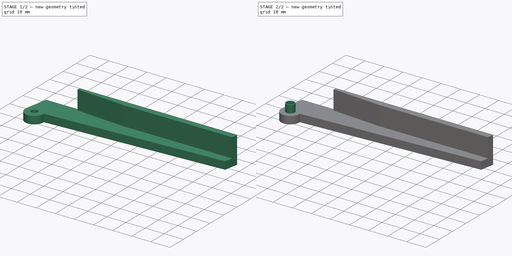
[diagram: build sequence overview — one tinted view per stage of 2, left to right]
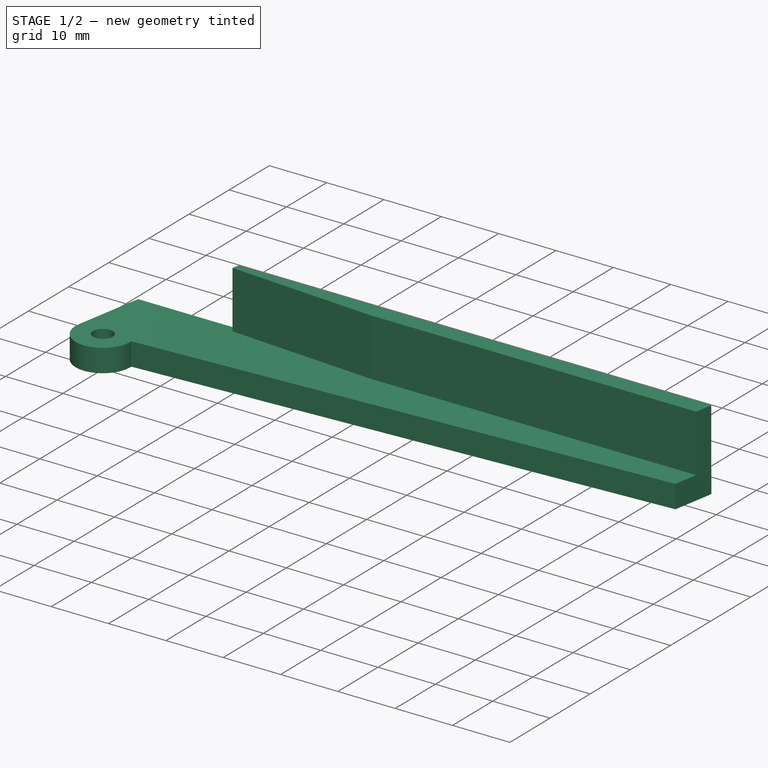
[diagram: stage 1 of 2 — iso view after this stage's code; geometry added in this stage tinted green]
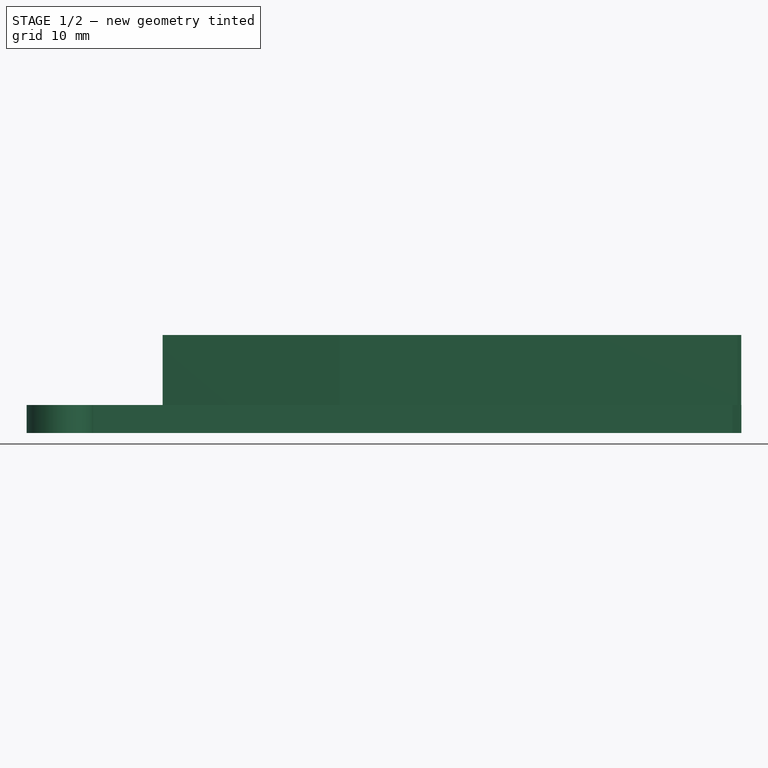
[diagram: stage 1 of 2 — front view after this stage's code; geometry added in this stage tinted green]
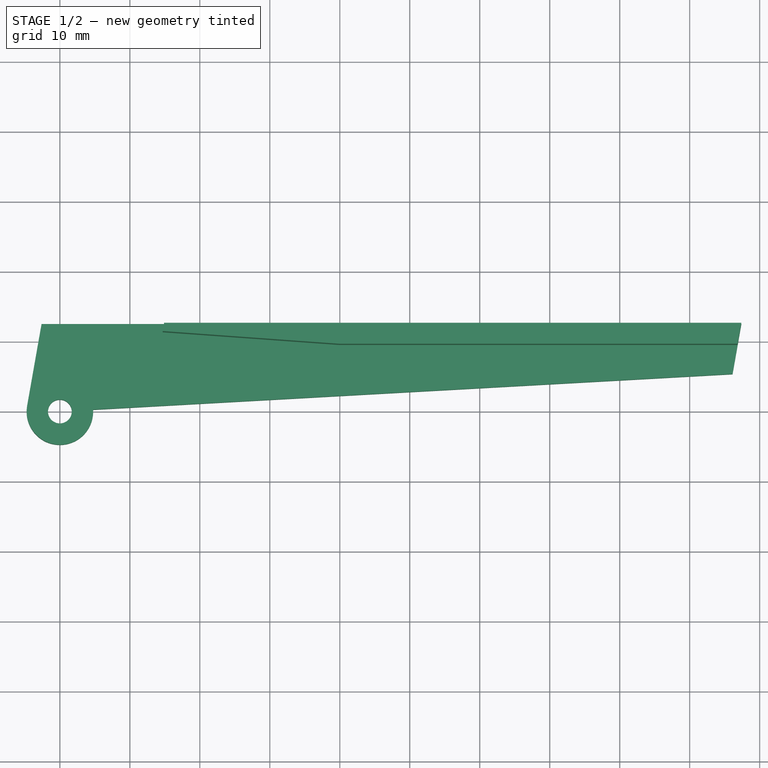
[diagram: stage 1 of 2 — top view after this stage's code; geometry added in this stage tinted green]
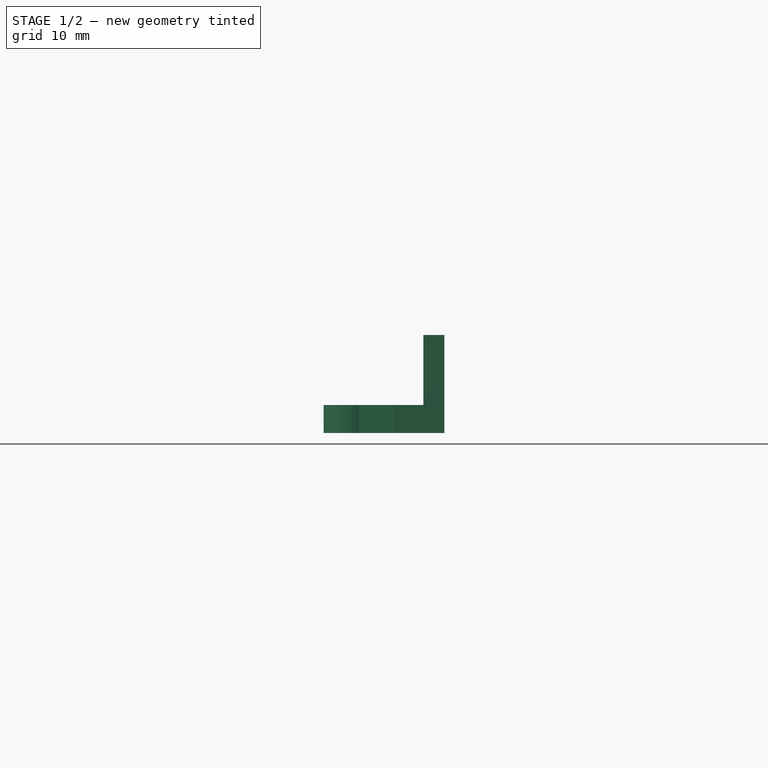
[diagram: stage 1 of 2 — right view after this stage's code; geometry added in this stage tinted green]
FCSTD DOCUMENT  (FreeCAD 0.21R33668 +7 (Git))
Label: leg1
License: All rights reserved
LicenseURL: http://en.wikipedia.org/wiki/All_rights_reserved
objects: Sketcher::SketchObject×5, PartDesign::Pad×3, PartDesign::CoordinateSystem×1, PartDesign::Body×1, App::Part×1
note: 13 computed .brp shape members not serialized (recipe doc carries the construction recipe); baked Part::Feature solids carry a one-line shape summary decoded from their .brp

FEATURE [Sketcher::SketchObject] Sketch
  FullyConstrained = true
  MapMode = 5
  Support = -> [XY_Plane]
  sketch-geometry (2):
    g0: Circle CenterX=0 CenterY=0 CenterZ=0 NormalX=0 NormalY=0 NormalZ=1 AngleXU=0 Radius=2.25
    g1: Circle CenterX=0 CenterY=0 CenterZ=0 NormalX=0 NormalY=0 NormalZ=1 AngleXU=0 Radius=1.7
  constraints (4):
    c: Coincident(g0,g-1)
    c: Diameter(g0) = 4.5
    c: Coincident(g1,g0)
    c: Diameter(g1) = 3.4
FEATURE [Sketcher::SketchObject] Sketch001
  FullyConstrained = false
  MapMode = 5
  Support = -> [XY_Plane]
  sketch-geometry (6):
    g0: ArcOfCircle CenterX=0 CenterY=0 CenterZ=0 NormalX=0 NormalY=0 NormalZ=1 AngleXU=0 Radius=4.75 StartAngle=2.96706 EndAngle=6.33885
    g1: LineSegment StartX=97.3808 StartY=12.5 StartZ=0 EndX=96.1212 EndY=5.35648 EndZ=0
    g2: LineSegment StartX=96.1212 StartY=5.35648 StartZ=0 EndX=4.74264 EndY=0.26429 EndZ=0
    g3: LineSegment StartX=-4.67784 StartY=0.824829 StartZ=0 EndX=-2.61919 EndY=12.5 EndZ=0
    g4: LineSegment StartX=-2.61919 StartY=12.5 StartZ=0 EndX=97.3808 EndY=12.5 EndZ=0
    g5: Circle CenterX=0 CenterY=0 CenterZ=0 NormalX=0 NormalY=0 NormalZ=1 AngleXU=0 Radius=1.7
  constraints (15):
    c: Coincident(g0,g-1)
    c: Coincident(g1,g2)
    c: Coincident(g0,g2)
    c: Diameter(g0) = 9.5
    c: Coincident(g4,g3)
    c: Coincident(g1,g4)
    c: DistanceY(g3) = 12.5
    c: Tangent(g3,g0) = 1.5708
    c: Angle(g3,g4) = 1.74533
    c: Distance(g4) = 100
    c: Horizontal(g4)
    c: PointOnObject(g0,g2)
    c: Angle(g4,g1) = 1.39626
    c: Coincident(g5,g0)
    c: Diameter(g5) = 3.4
FEATURE [PartDesign::Pad] Pad001
  Direction = (0,0,1)
  Length = 4
  Length2 = 10
  Profile = -> Sketch001
  ReferenceAxis = -> Sketch001 [N_Axis]
  Reversed = true
  Type = 0
FEATURE [PartDesign::CoordinateSystem] LCS_0
  AttacherType = Attacher::AttachEngine3D
  MapMode = 2
  Support = -> [X_Axis001]
FEATURE [Sketcher::SketchObject] Sketch002
  FullyConstrained = true
  MapMode = 5
  Support = -> [XY_Plane]
  sketch-geometry (8):
    g0: ArcOfCircle CenterX=0 CenterY=0 CenterZ=0 NormalX=0 NormalY=0 NormalZ=1 AngleXU=0 Radius=4.75 StartAngle=4.71239 EndAngle=8.08017
    g1: LineSegment StartX=-29.2201 StartY=93.7308 StartZ=0 EndX=-21.5701 EndY=93.7308 EndZ=0
    g2: LineSegment StartX=-21.5701 StartY=93.7308 StartZ=0 EndX=-1.06527 EndY=4.62901 EndZ=0
    g3: LineSegment StartX=-6.5274e-12 StartY=-4.75 StartZ=0 EndX=-11.8553 EndY=-4.75 EndZ=0
    g4: LineSegment StartX=-11.8553 StartY=-4.75 StartZ=0 EndX=-29.2201 EndY=93.7308 EndZ=0
    g5: LineSegment StartX=-12.6928 StartY=0 StartZ=0 EndX=-14.8969 EndY=12.5 EndZ=0
    g6: LineSegment StartX=-14.8969 StartY=12.5 StartZ=0 EndX=-14.8969 EndY=0 EndZ=0
    g7: LineSegment StartX=-14.8969 StartY=0 StartZ=0 EndX=-12.6928 EndY=0 EndZ=0
  constraints (23):
    c: Coincident(g0,g-1)
    c: Coincident(g1,g2)
    c: Coincident(g0,g2)
    c: Diameter(g0) = 9.5
    c: Coincident(g4,g3)
    c: Coincident(g1,g4)
    c: Tangent(g3,g0) = 1.5708
    c: Angle(g3,g4) = 1.74533
    c: Angle(g4,g1) = 1.39626
    c: Distance(g4) = 100
    c: Distance(g1) = 7.65
    c: Distance(g0,g4) = 12.5
    c: Horizontal(g3)
    c: PointOnObject(g5,g4)
    c: PointOnObject(g5,g4)
    c: Coincident(g5,g6)
    c: PointOnObject(g6,g-1)
    c: Vertical(g6)
    c: Coincident(g6,g7)
    c: Coincident(g7,g5)
    c: PointOnObject(g5,g-1)
    c: DistanceY(g5) = 12.5
    c: PointOnObject(g0,g2)
FEATURE [Sketcher::SketchObject] Sketch003
  FullyConstrained = true
  MapMode = 5
  Support = -> [XY_Plane]
  sketch-geometry (1):
    g0: Circle CenterX=0 CenterY=0 CenterZ=0 NormalX=0 NormalY=0 NormalZ=1 AngleXU=0 Radius=4.75
  constraints (2):
    c: Coincident(g0,g-1)
    c: Diameter(g0) = 9.5
FEATURE [Sketcher::SketchObject] Sketch004
  FullyConstrained = false
  MapMode = 5
  Support = -> [XY_Plane]
  sketch-geometry (12):
    g0: LineSegment StartX=14.8968 StartY=12.5 StartZ=0 EndX=97.3637 EndY=12.5 EndZ=0
    g1: LineSegment StartX=96.4669 StartY=7.5 StartZ=0 EndX=14 EndY=7.5 EndZ=0
    g2: LineSegment StartX=0 StartY=0 StartZ=0 EndX=2.1706 EndY=12.3101 EndZ=0
    g3: LineSegment StartX=2.1706 StartY=12.3101 StartZ=0 EndX=14.4807 EndY=10.1395 EndZ=0
    g4: LineSegment StartX=14.4807 StartY=10.1395 StartZ=0 EndX=21.8405 EndY=51.8788 EndZ=0
    g5: LineSegment StartX=14.4807 StartY=10.1395 StartZ=0 EndX=13.1891 EndY=2.81463 EndZ=0
    g6: LineSegment StartX=14 StartY=7.5 StartZ=0 EndX=14.6849 EndY=11.3188 EndZ=0
    g7: LineSegment StartX=14.6849 StartY=11.3188 StartZ=0 EndX=14.8968 EndY=12.5 EndZ=0
    g8: LineSegment StartX=97.3637 StartY=12.5 StartZ=0 EndX=96.8256 EndY=9.5 EndZ=0
    g9: LineSegment StartX=96.8256 StartY=9.5 StartZ=0 EndX=96.4669 EndY=7.5 EndZ=0
    g10: LineSegment StartX=96.8256 StartY=9.5 StartZ=0 EndX=39.9825 EndY=9.5 EndZ=0
    g11: LineSegment StartX=14.6849 StartY=11.3188 StartZ=0 EndX=39.9825 EndY=9.5 EndZ=0
  constraints (30):
    c: Coincident(g0,g8)
    c: Coincident(g9,g1)
    c: Coincident(g1,g6)
    c: Coincident(g7,g0)
    c: Horizontal(g0)
    c: Horizontal(g1)
    c: Distance(g0,g1) = 5
    c: DistanceY(g0) = 12.5
    c: Coincident(g2,g-1)
    c: Distance(g2) = 12.5
    c: Coincident(g3,g2)
    c: Equal(g3,g2)
    c: Angle(g2,g3) = 1.5708
    c: Coincident(g4,g3)
    c: Angle(g4,g3) = 1.5708
    c: Coincident(g5,g3)
    c: Parallel(g5,g4)
    c: Angle(g2,g-2) = 0.174533
    c: DistanceX(g1) = 14
    c: Coincident(g6,g7)
    c: Coincident(g8,g9)
    c: Parallel(g6,g8)
    c: Parallel(g6,g9)
    c: Parallel(g7,g8)
    c: Coincident(g10,g8)
    c: Horizontal(g10)
    c: Coincident(g11,g7)
    c: Coincident(g11,g10)
    c: Distance(g10,g1) = 2
    c: Distance(g7) = 1.2
FEATURE [PartDesign::Pad] Pad003
  BaseFeature = -> Pad001
  Direction = (0,0,1)
  Length = 10
  Length2 = 10
  Profile = -> Sketch004
  ReferenceAxis = -> Sketch004 [N_Axis]
  Type = 0
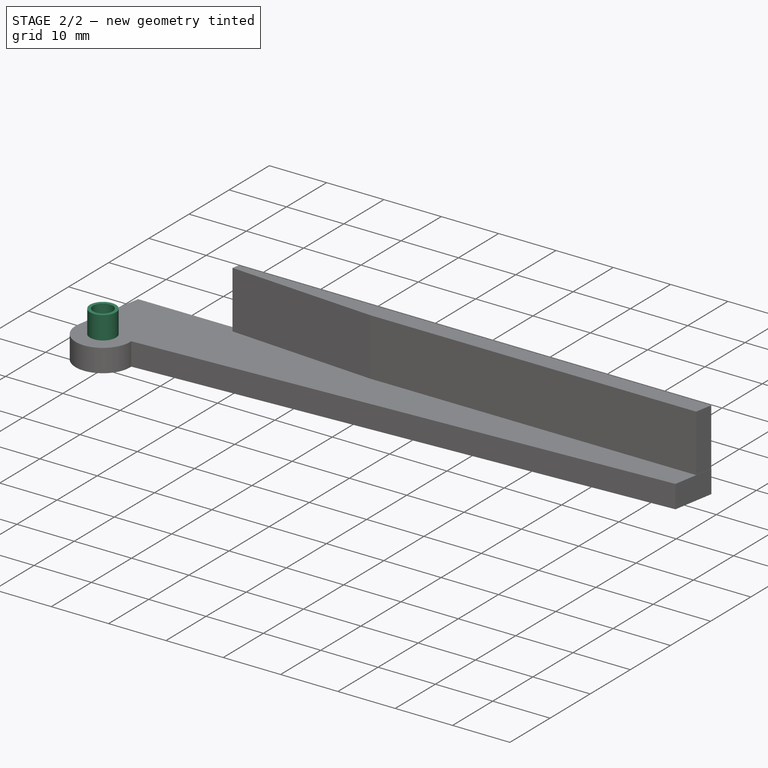
[diagram: stage 2 of 2 — iso view after this stage's code; geometry added in this stage tinted green]
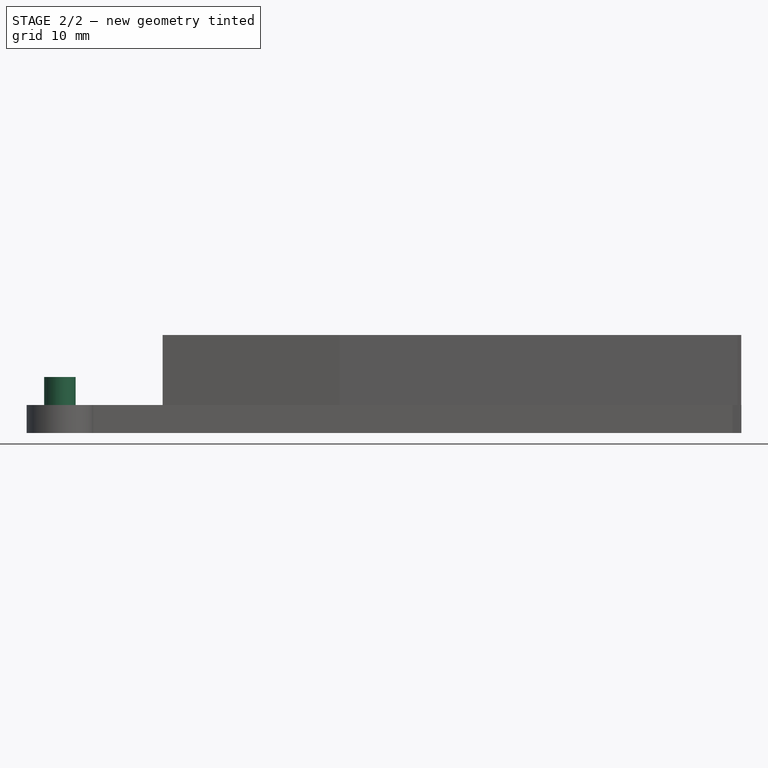
[diagram: stage 2 of 2 — front view after this stage's code; geometry added in this stage tinted green]
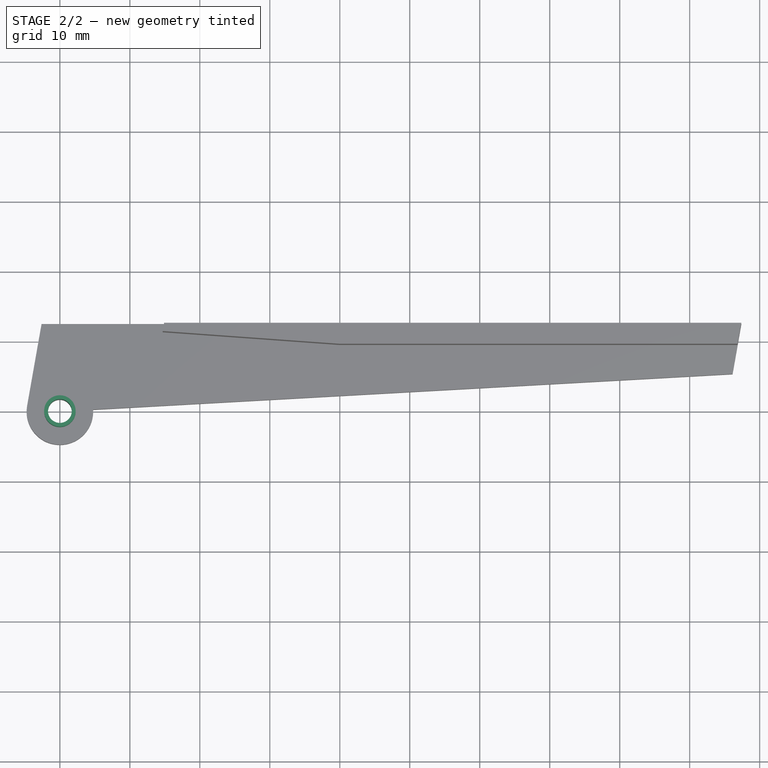
[diagram: stage 2 of 2 — top view after this stage's code; geometry added in this stage tinted green]
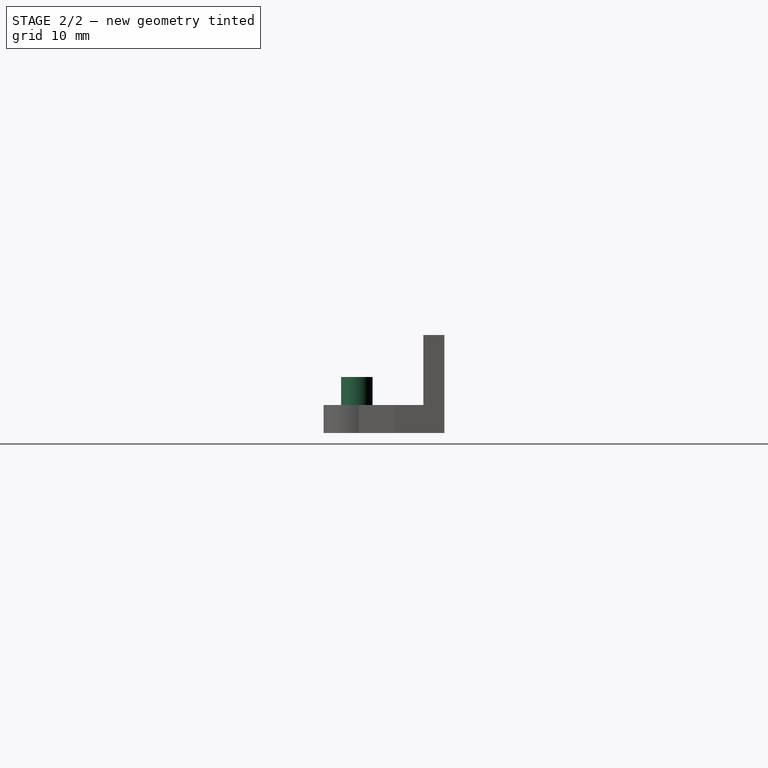
[diagram: stage 2 of 2 — right view after this stage's code; geometry added in this stage tinted green]
FEATURE [PartDesign::Pad] Pad
  BaseFeature = -> Pad003
  Direction = (0,0,1)
  Length = 4
  Length2 = 10
  Profile = -> Sketch
  ReferenceAxis = -> Sketch [N_Axis]
  Type = 0
FEATURE [PartDesign::Body] Body
  Group = -> [Sketch,Sketch001,Pad001,Sketch002,Sketch003,Sketch004,Pad003,Pad]
  Origin = -> Origin
  Tip = -> Pad
FEATURE [App::Part] leg1
  Group = -> [LCS_0,Body]
  Origin = -> Origin001
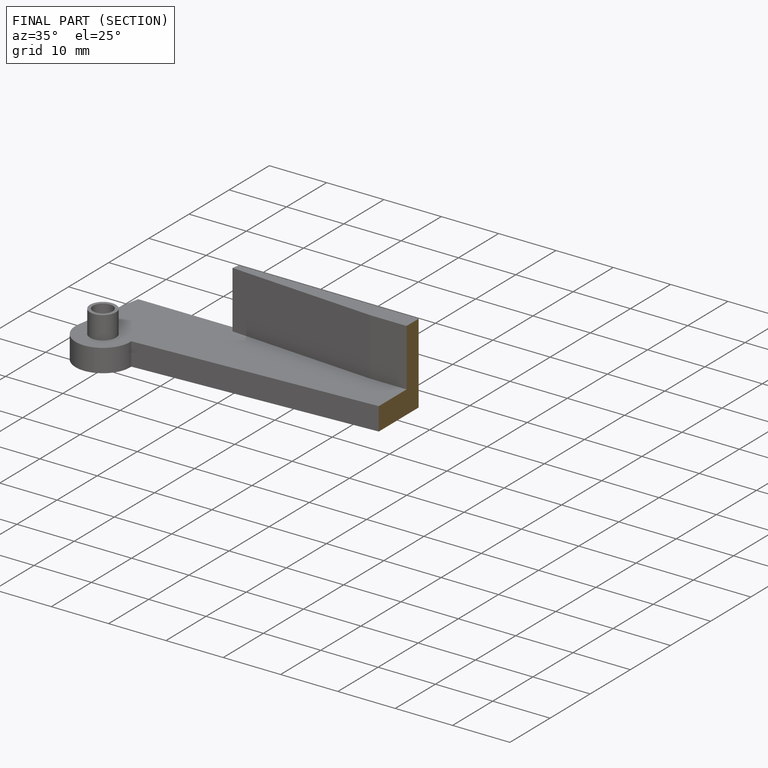
[diagram: finished part — half-section view (interior)]
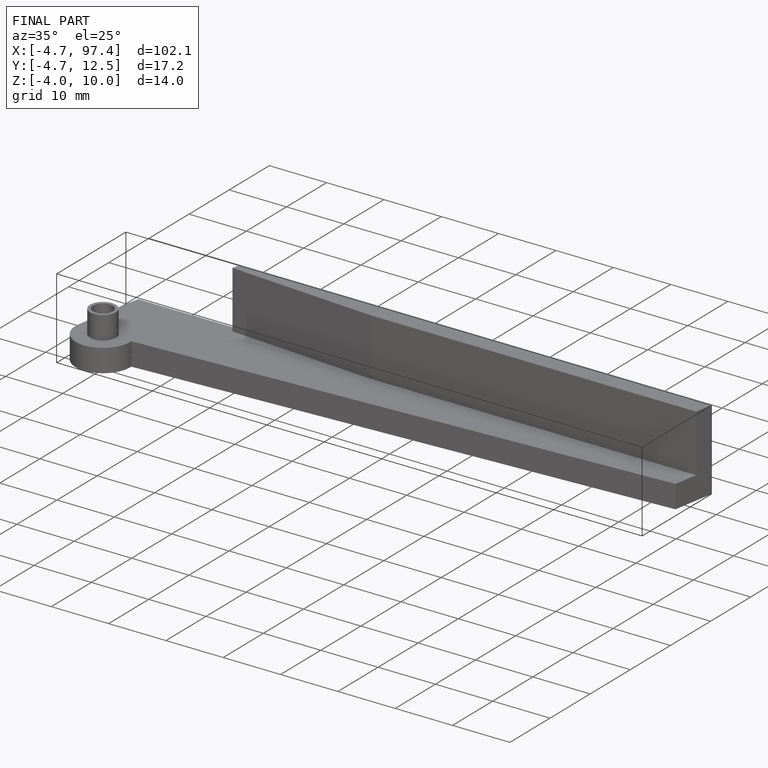
[diagram: finished part — iso view with bounding-box wireframe]
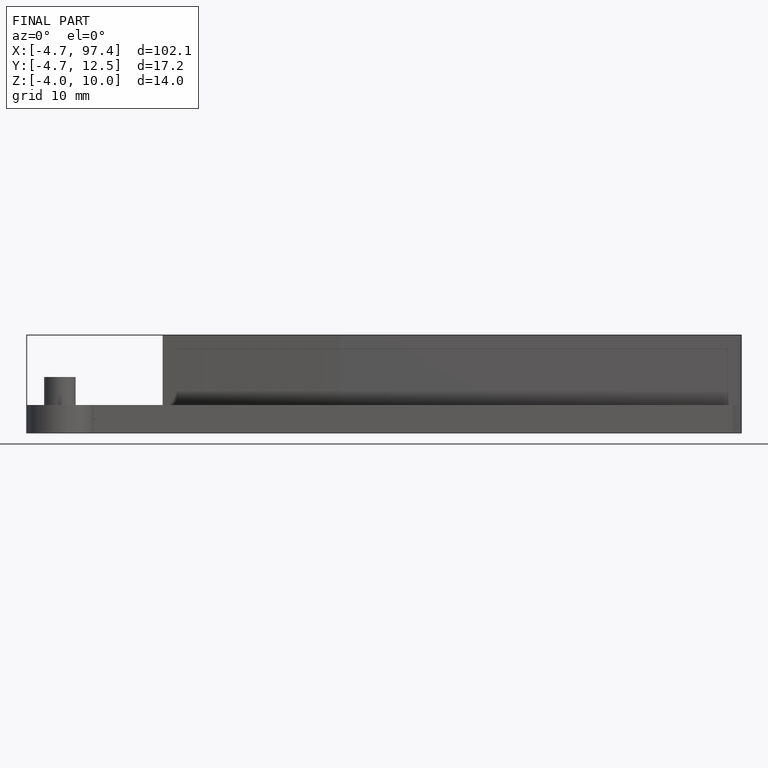
[diagram: finished part — front view with bounding-box wireframe]
